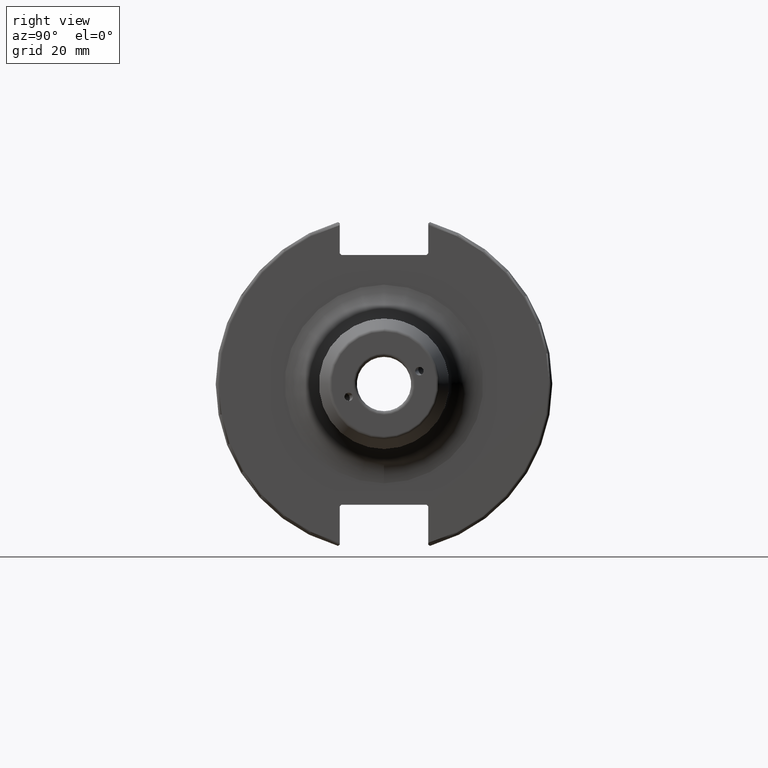
[diagram: clean part render]
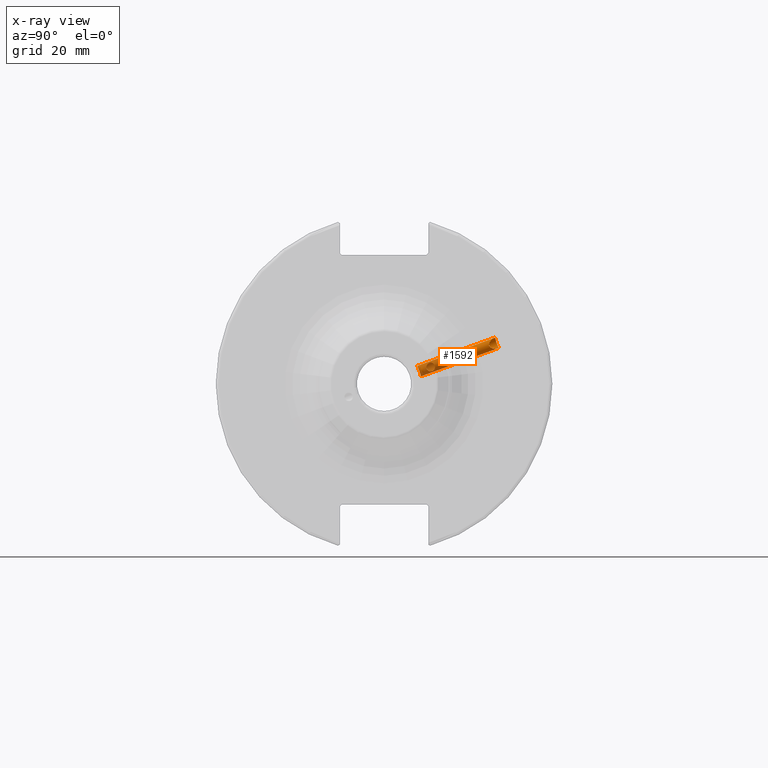
[diagram: x-ray — body ghosted, one internal face saturated and labeled with its STEP entity id]
A machine part, right view, then the same camera in x-ray: the body is ghosted and one INTERNAL B-rep face — a face not visible from any outside direction — is saturated and labeled: STEP entity #1592.
In plain terms, the highlighted cylindrical surface (bore or boss wall) has radius 1.621 mm, axis along (-0, 0.9397, 0.342).
Its self-contained STEP definition (entity closure, byte-faithful):
#43=FACE_BOUND('',#323,.T.);
#222=FACE_OUTER_BOUND('',#322,.T.);
#322=EDGE_LOOP('',(#1227,#1228,#1229,#1230,#1231,#1232));
#323=EDGE_LOOP('',(#1233,#1234));
#393=B_SPLINE_CURVE_WITH_KNOTS('',3,(#2337,#2338,#2339,#2340,#2341,#2342,
#2343,#2344,#2345,#2346,#2347,#2348,#2349,#2350,#2351,#2352,#2353,#2354,
#2355,#2356,#2357,#2358,#2359,#2360,#2361,#2362,#2363,#2364),
 .UNSPECIFIED.,.F.,.F.,(4,2,2,2,2,2,2,2,2,2,2,2,2,4),(0.,0.0505589010815354,
0.101117802163071,0.150146496829497,0.199175191495923,0.24820388616235,
0.297232580828776,0.347791481910311,0.398350382991847,0.422634788863788,
0.446919194735729,0.495488006479611,0.544003833036441,0.550570841322243),
 .UNSPECIFIED.);
#394=B_SPLINE_CURVE_WITH_KNOTS('',3,(#2365,#2366,#2367,#2368,#2369,#2370,
#2371,#2372,#2373,#2374,#2375,#2376,#2377,#2378),.UNSPECIFIED.,.F.,.F.,
(4,2,2,2,2,2,4),(0.550570841322243,0.592519659593271,0.6410354861501,0.68955131270693,
0.738120124450812,0.762404530322754,0.786688936194695),.UNSPECIFIED.);
#406=B_SPLINE_CURVE_WITH_KNOTS('',3,(#2606,#2607,#2608,#2609,#2610,#2611,
#2612,#2613,#2614,#2615,#2616,#2617,#2618,#2619,#2620,#2621,#2622,#2623,
#2624,#2625,#2626,#2627,#2628,#2629,#2630,#2631),.UNSPECIFIED.,.F.,.F.,
(4,2,2,2,2,2,2,2,2,2,2,2,4),(0.,0.0611574273332737,0.122314854666547,0.183471284102352,
0.244627713538156,0.30578414297396,0.366940572409764,0.428097999743038,
0.489255427076312,0.550412854409585,0.611570281742859,0.672726711178663,
0.733883140614467),.UNSPECIFIED.);
#407=B_SPLINE_CURVE_WITH_KNOTS('',3,(#2632,#2633,#2634,#2635,#2636,#2637,
#2638,#2639,#2640,#2641),.UNSPECIFIED.,.F.,.F.,(4,2,2,2,4),(0.733883140614467,
0.795039570050271,0.856195999486075,0.917353426819349,0.978510854152623),
 .UNSPECIFIED.);
#417=B_SPLINE_CURVE_WITH_KNOTS('',3,(#2870,#2871,#2872,#2873,#2874,#2875,
#2876,#2877,#2878,#2879,#2880,#2881,#2882,#2883,#2884,#2885,#2886,#2887,
#2888,#2889,#2890,#2891,#2892,#2893,#2894,#2895,#2896,#2897,#2898,#2899,
#2900,#2901),.UNSPECIFIED.,.F.,.F.,(4,2,2,2,2,2,2,2,2,2,2,2,2,2,2,4),(0.,
0.0884839677067702,0.17696793541354,0.264588928472713,0.29293468020263,
0.321280431932547,0.349626183662464,0.377971935392381,0.465592928451554,
0.554076896158325,0.642560863865095,0.674019283137882,0.705477702410668,
0.76839454095624,0.837532569122269,0.892424435682428),.UNSPECIFIED.);
#418=B_SPLINE_CURVE_WITH_KNOTS('',3,(#2902,#2903,#2904,#2905,#2906,#2907,
#2908,#2909,#2910,#2911,#2912,#2913),.UNSPECIFIED.,.F.,.F.,(4,2,2,2,2,4),
(0.892424435682428,0.947316302242586,1.01645433040861,1.07937116895419,
1.11082958822697,1.14228800749976),.UNSPECIFIED.);
#478=LINE('',#2914,#574);
#574=VECTOR('',#2022,1.621);
#642=VERTEX_POINT('',#2334);
#643=VERTEX_POINT('',#2336);
#687=VERTEX_POINT('',#2604);
#688=VERTEX_POINT('',#2605);
#718=VERTEX_POINT('',#2868);
#719=VERTEX_POINT('',#2869);
#809=EDGE_CURVE('',#643,#642,#393,.T.);
#810=EDGE_CURVE('',#642,#643,#394,.T.);
#869=EDGE_CURVE('',#687,#688,#406,.T.);
#870=EDGE_CURVE('',#688,#687,#407,.T.);
#909=EDGE_CURVE('',#718,#719,#417,.T.);
#910=EDGE_CURVE('',#719,#718,#418,.T.);
#911=EDGE_CURVE('',#719,#688,#478,.T.);
#1227=ORIENTED_EDGE('',*,*,#909,.F.);
#1228=ORIENTED_EDGE('',*,*,#910,.F.);
#1229=ORIENTED_EDGE('',*,*,#911,.T.);
#1230=ORIENTED_EDGE('',*,*,#870,.T.);
#1231=ORIENTED_EDGE('',*,*,#869,.T.);
#1232=ORIENTED_EDGE('',*,*,#911,.F.);
#1233=ORIENTED_EDGE('',*,*,#809,.T.);
#1234=ORIENTED_EDGE('',*,*,#810,.T.);
#1547=CYLINDRICAL_SURFACE('',#1743,1.621);
#1592=ADVANCED_FACE('',(#222,#43),#1547,.F.);
#1743=AXIS2_PLACEMENT_3D('',#2867,#2020,#2021);
#2020=DIRECTION('center_axis',(-1.20908356884163E-16,0.939692620785908,
0.342020143325669));
#2021=DIRECTION('ref_axis',(1.,1.28667985902711E-16,0.));
#2022=DIRECTION('',(1.20908356884163E-16,-0.939692620785908,-0.342020143325669));
#2334=CARTESIAN_POINT('',(12.6927488330943,14.8744451599193,4.96731687221233));
#2336=CARTESIAN_POINT('',(12.1833951675391,13.2552493874008,6.13292279604834));
#2337=CARTESIAN_POINT('Ctrl Pts',(12.1833951675391,13.2552493874008,6.13292279604834));
#2338=CARTESIAN_POINT('Ctrl Pts',(12.1833951675391,13.0968832998629,6.07528225406736));
#2339=CARTESIAN_POINT('Ctrl Pts',(12.2264655910216,12.9504450637092,5.98463801700215));
#2340=CARTESIAN_POINT('Ctrl Pts',(12.349662233931,12.7059168035191,5.76107044499839));
#2341=CARTESIAN_POINT('Ctrl Pts',(12.4274048876158,12.6073811809304,5.6273283496327));
#2342=CARTESIAN_POINT('Ctrl Pts',(12.5608242011677,12.4726454304437,5.35485429347831));
#2343=CARTESIAN_POINT('Ctrl Pts',(12.6275015699366,12.4253505154453,5.19635030707144));
#2344=CARTESIAN_POINT('Ctrl Pts',(12.7214257830272,12.4010863578678,4.86708628534491));
#2345=CARTESIAN_POINT('Ctrl Pts',(12.748,12.4245938010782,4.69609980669925));
#2346=CARTESIAN_POINT('Ctrl Pts',(12.748,12.5363858089241,4.38895378946721));
#2347=CARTESIAN_POINT('Ctrl Pts',(12.7214257830272,12.6282860525782,4.24286025442112));
#2348=CARTESIAN_POINT('Ctrl Pts',(12.6275015699366,12.8585203091388,4.00622608010881));
#2349=CARTESIAN_POINT('Ctrl Pts',(12.5608242011678,12.9966347145093,3.91520556747177));
#2350=CARTESIAN_POINT('Ctrl Pts',(12.4274048876158,13.2749912347162,3.79308480185528));
#2351=CARTESIAN_POINT('Ctrl Pts',(12.349662233931,13.4364416626441,3.7539698902021));
#2352=CARTESIAN_POINT('Ctrl Pts',(12.2264655910216,13.76746764276,3.7398869298754));
#2353=CARTESIAN_POINT('Ctrl Pts',(12.1833951675391,13.9379108323007,3.76457809955481));
#2354=CARTESIAN_POINT('Ctrl Pts',(12.1833951675391,14.1723431764987,3.84990449479213));
#2355=CARTESIAN_POINT('Ctrl Pts',(12.1929893015837,14.2459312247274,3.88526585321311));
#2356=CARTESIAN_POINT('Ctrl Pts',(12.2287300129232,14.3832639971533,3.96947715493981));
#2357=CARTESIAN_POINT('Ctrl Pts',(12.2547925518671,14.4470251122136,4.01833601314339));
#2358=CARTESIAN_POINT('Ctrl Pts',(12.3463386645997,14.6192795358337,4.18054110058603));
#2359=CARTESIAN_POINT('Ctrl Pts',(12.4243859647887,14.7087880829673,4.31079437192461));
#2360=CARTESIAN_POINT('Ctrl Pts',(12.5596154649813,14.8288257777462,4.57918010312058));
#2361=CARTESIAN_POINT('Ctrl Pts',(12.6274265501395,14.8678869908354,4.73707754652833));
#2362=CARTESIAN_POINT('Ctrl Pts',(12.68106467886,14.8745980138431,4.92278807497438));
#2363=CARTESIAN_POINT('Ctrl Pts',(12.6871020329801,14.8748162095126,4.94502890602668));
#2364=CARTESIAN_POINT('Ctrl Pts',(12.6927488330943,14.8744451599193,4.96731687221544));
#2365=CARTESIAN_POINT('Ctrl Pts',(12.6927488330943,14.8744451599193,4.96731687221544));
#2366=CARTESIAN_POINT('Ctrl Pts',(12.7288195340127,14.8720749646521,5.10968822345987));
#2367=CARTESIAN_POINT('Ctrl Pts',(12.748,14.8446609330128,5.25421138410548));
#2368=CARTESIAN_POINT('Ctrl Pts',(12.748,14.741525163713,5.53757458139467));
#2369=CARTESIAN_POINT('Ctrl Pts',(12.7219132684529,14.6537345848901,5.68507676219762));
#2370=CARTESIAN_POINT('Ctrl Pts',(12.6274265501395,14.4343969632831,5.92808160878698));
#2371=CARTESIAN_POINT('Ctrl Pts',(12.5596154649813,14.302979817831,6.02393000409914));
#2372=CARTESIAN_POINT('Ctrl Pts',(12.4243859647887,14.0385105861514,6.15236665919502));
#2373=CARTESIAN_POINT('Ctrl Pts',(12.3463386645997,13.8862178720704,6.19461146884348));
#2374=CARTESIAN_POINT('Ctrl Pts',(12.2547925518671,13.6499999076173,6.20814476550781));
#2375=CARTESIAN_POINT('Ctrl Pts',(12.2287300129232,13.5697501910617,6.20458796759129));
#2376=CARTESIAN_POINT('Ctrl Pts',(12.1929893015837,13.4104172025411,6.18082176280753));
#2377=CARTESIAN_POINT('Ctrl Pts',(12.1833951675391,13.3313156440609,6.16060864930468));
#2378=CARTESIAN_POINT('Ctrl Pts',(12.1833951675391,13.2552493874008,6.13292279604834));
#2604=CARTESIAN_POINT('',(11.127,10.7644060814244,2.19289123400911));
#2605=CARTESIAN_POINT('',(9.50600000000001,10.3229932856436,3.75726228450413));
#2606=CARTESIAN_POINT('Ctrl Pts',(11.127,10.7644060814244,2.19289123400911));
#2607=CARTESIAN_POINT('Ctrl Pts',(11.3308580911109,10.7644060814244,2.19289123400911));
#2608=CARTESIAN_POINT('Ctrl Pts',(11.5480976425658,10.7563992112981,2.23339769026782));
#2609=CARTESIAN_POINT('Ctrl Pts',(11.9473884896352,10.7211890589831,2.39672575217716));
#2610=CARTESIAN_POINT('Ctrl Pts',(12.1294656702174,10.6936730645534,2.51941648519806));
#2611=CARTESIAN_POINT('Ctrl Pts',(12.4169721687679,10.6236838882786,2.79990053351312));
#2612=CARTESIAN_POINT('Ctrl Pts',(12.5416766094346,10.5764720644486,2.97648040123253));
#2613=CARTESIAN_POINT('Ctrl Pts',(12.7071987049788,10.4611409987277,3.35942344936975));
#2614=CARTESIAN_POINT('Ctrl Pts',(12.748,10.3927157215133,3.56570146632267));
#2615=CARTESIAN_POINT('Ctrl Pts',(12.748,10.2532708497739,3.9488231026856));
#2616=CARTESIAN_POINT('Ctrl Pts',(12.7071987049788,10.1730946997047,4.15082415169273));
#2617=CARTESIAN_POINT('Ctrl Pts',(12.5416766094346,10.015292375161,4.51830892580663));
#2618=CARTESIAN_POINT('Ctrl Pts',(12.4169721687679,9.93795537936544,4.68392412762843));
#2619=CARTESIAN_POINT('Ctrl Pts',(12.1294656702174,9.81127852795753,4.94377554954528));
#2620=CARTESIAN_POINT('Ctrl Pts',(11.9473884896352,9.75349291957811,5.05544904408575));
#2621=CARTESIAN_POINT('Ctrl Pts',(11.5480976425658,9.67548020659099,5.20319824796009));
#2622=CARTESIAN_POINT('Ctrl Pts',(11.3308580911109,9.65557677676255,5.23937471059702));
#2623=CARTESIAN_POINT('Ctrl Pts',(10.9231419088891,9.65557677676255,5.23937471059702));
#2624=CARTESIAN_POINT('Ctrl Pts',(10.7059023574342,9.67548020659099,5.20319824796008));
#2625=CARTESIAN_POINT('Ctrl Pts',(10.3066115103648,9.75349291957811,5.05544904408574));
#2626=CARTESIAN_POINT('Ctrl Pts',(10.1245343297826,9.81127852795753,4.94377554954527));
#2627=CARTESIAN_POINT('Ctrl Pts',(9.83702783123207,9.93795537936544,4.68392412762843));
#2628=CARTESIAN_POINT('Ctrl Pts',(9.71232339056538,10.015292375161,4.51830892580662));
#2629=CARTESIAN_POINT('Ctrl Pts',(9.54680129502122,10.1730946997047,4.15082415169272));
#2630=CARTESIAN_POINT('Ctrl Pts',(9.50600000000001,10.2532708497739,3.9488231026856));
#2631=CARTESIAN_POINT('Ctrl Pts',(9.50600000000001,10.3229932856436,3.75726228450413));
#2632=CARTESIAN_POINT('Ctrl Pts',(9.50600000000001,10.3229932856436,3.75726228450413));
#2633=CARTESIAN_POINT('Ctrl Pts',(9.50600000000001,10.3927157215133,3.56570146632267));
#2634=CARTESIAN_POINT('Ctrl Pts',(9.54680129502122,10.4611409987277,3.35942344936975));
#2635=CARTESIAN_POINT('Ctrl Pts',(9.71232339056538,10.5764720644486,2.97648040123254));
#2636=CARTESIAN_POINT('Ctrl Pts',(9.83702783123206,10.6236838882786,2.79990053351313));
#2637=CARTESIAN_POINT('Ctrl Pts',(10.1245343297826,10.6936730645534,2.51941648519806));
#2638=CARTESIAN_POINT('Ctrl Pts',(10.3066115103648,10.7211890589831,2.39672575217716));
#2639=CARTESIAN_POINT('Ctrl Pts',(10.7059023574342,10.7563992112981,2.23339769026782));
#2640=CARTESIAN_POINT('Ctrl Pts',(10.9231419088891,10.7644060814244,2.19289123400911));
#2641=CARTESIAN_POINT('Ctrl Pts',(11.127,10.7644060814244,2.19289123400911));
#2867=CARTESIAN_POINT('Origin',(11.127,21.5598376450015,7.84713915839248));
#2868=CARTESIAN_POINT('',(11.127,33.3180066739614,10.4017305252212));
#2869=CARTESIAN_POINT('',(9.506,32.9302546125277,11.9856324857674));
#2870=CARTESIAN_POINT('Ctrl Pts',(11.127,33.3180066739614,10.4017305252212));
#2871=CARTESIAN_POINT('Ctrl Pts',(11.3686060767793,33.1590347421905,10.3438694739727));
#2872=CARTESIAN_POINT('Ctrl Pts',(11.5793820284691,32.9265222260495,10.3130739191917));
#2873=CARTESIAN_POINT('Ctrl Pts',(11.9610018879898,32.4227535856658,10.3052665038932));
#2874=CARTESIAN_POINT('Ctrl Pts',(12.1308400889368,32.1507028147897,10.3305992558997));
#2875=CARTESIAN_POINT('Ctrl Pts',(12.4142114787667,31.6507121188742,10.450175059589));
#2876=CARTESIAN_POINT('Ctrl Pts',(12.5624213105869,31.3550631351684,10.5662118597017));
#2877=CARTESIAN_POINT('Ctrl Pts',(12.6780350131118,31.0691918693162,10.7993137473042));
#2878=CARTESIAN_POINT('Ctrl Pts',(12.7040094113745,30.9979746661842,10.8699279351394));
#2879=CARTESIAN_POINT('Ctrl Pts',(12.7390906022264,30.8779301513201,11.0303555632259));
#2880=CARTESIAN_POINT('Ctrl Pts',(12.748,30.8293999774207,11.1204342022846));
#2881=CARTESIAN_POINT('Ctrl Pts',(12.748,30.7647678569584,11.2980094938262));
#2882=CARTESIAN_POINT('Ctrl Pts',(12.7390906022264,30.7440426939133,11.3982083291993));
#2883=CARTESIAN_POINT('Ctrl Pts',(12.7040094113745,30.7328812358665,11.5982661489831));
#2884=CARTESIAN_POINT('Ctrl Pts',(12.6780350131118,30.7420468535717,11.6981372909494));
#2885=CARTESIAN_POINT('Ctrl Pts',(12.5624213105869,30.8112019430797,12.0604582042831));
#2886=CARTESIAN_POINT('Ctrl Pts',(12.4142114787667,30.9630951867812,12.3393870537492));
#2887=CARTESIAN_POINT('Ctrl Pts',(12.1308400889368,31.2692484359686,12.7523752579899));
#2888=CARTESIAN_POINT('Ctrl Pts',(11.9610018879898,31.4613678381355,12.9466521366183));
#2889=CARTESIAN_POINT('Ctrl Pts',(11.5793820284691,31.8522955155365,13.264487549701));
#2890=CARTESIAN_POINT('Ctrl Pts',(11.3686060767793,32.0502054375286,13.3903529505607));
#2891=CARTESIAN_POINT('Ctrl Pts',(11.0411025718087,32.2656961467896,13.4687851544926));
#2892=CARTESIAN_POINT('Ctrl Pts',(10.9475197272613,32.319337112024,13.4809373024586));
#2893=CARTESIAN_POINT('Ctrl Pts',(10.7524056152646,32.4120347916018,13.478660481775));
#2894=CARTESIAN_POINT('Ctrl Pts',(10.6508468329885,32.4510290142907,13.4640493136015));
#2895=CARTESIAN_POINT('Ctrl Pts',(10.3515687330207,32.5462208483495,13.3776426663642));
#2896=CARTESIAN_POINT('Ctrl Pts',(10.1588386735598,32.5827431071443,13.2604924449868));
#2897=CARTESIAN_POINT('Ctrl Pts',(9.84134561894807,32.655830196381,12.9644900573906));
#2898=CARTESIAN_POINT('Ctrl Pts',(9.69002806088231,32.7033162128217,12.737930692361));
#2899=CARTESIAN_POINT('Ctrl Pts',(9.54526126545399,32.8036762615874,12.3639022622834));
#2900=CARTESIAN_POINT('Ctrl Pts',(9.506,32.8676741989667,12.1575707589266));
#2901=CARTESIAN_POINT('Ctrl Pts',(9.506,32.9302546125277,11.9856324857674));
#2902=CARTESIAN_POINT('Ctrl Pts',(9.506,32.9302546125277,11.9856324857674));
#2903=CARTESIAN_POINT('Ctrl Pts',(9.506,32.9928350260888,11.8136942126083));
#2904=CARTESIAN_POINT('Ctrl Pts',(9.54526126545399,33.0764370956341,11.6144980298285));
#2905=CARTESIAN_POINT('Ctrl Pts',(9.69002806088231,33.2399776784904,11.2634654335448));
#2906=CARTESIAN_POINT('Ctrl Pts',(9.84134561894807,33.3492308321696,11.0593874679259));
#2907=CARTESIAN_POINT('Ctrl Pts',(10.1588386735598,33.4835095407806,10.7856570083685));
#2908=CARTESIAN_POINT('Ctrl Pts',(10.3515687330207,33.5308345781541,10.6724386768412));
#2909=CARTESIAN_POINT('Ctrl Pts',(10.6508468329885,33.5134545248817,10.5450592134001));
#2910=CARTESIAN_POINT('Ctrl Pts',(10.7524056152646,33.4929750951421,10.5088014060196));
#2911=CARTESIAN_POINT('Ctrl Pts',(10.9475197272613,33.4234280649364,10.4474723403076));
#2912=CARTESIAN_POINT('Ctrl Pts',(11.0411025718087,33.3745254514514,10.4223016779046));
#2913=CARTESIAN_POINT('Ctrl Pts',(11.127,33.3180066739614,10.4017305252212));
#2914=CARTESIAN_POINT('',(9.506,21.5598376450015,7.84713915839248));